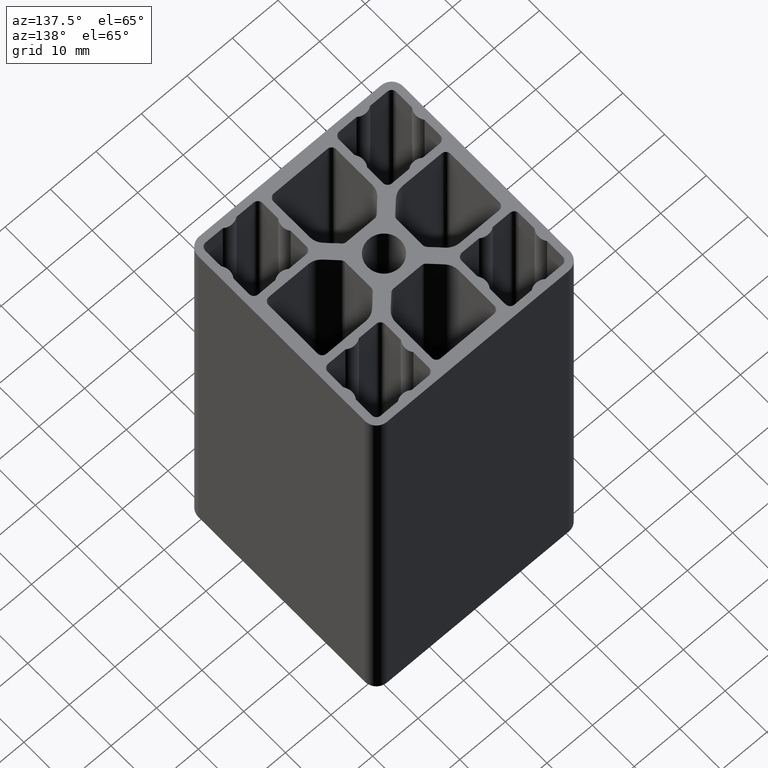
[diagram: clean part render]
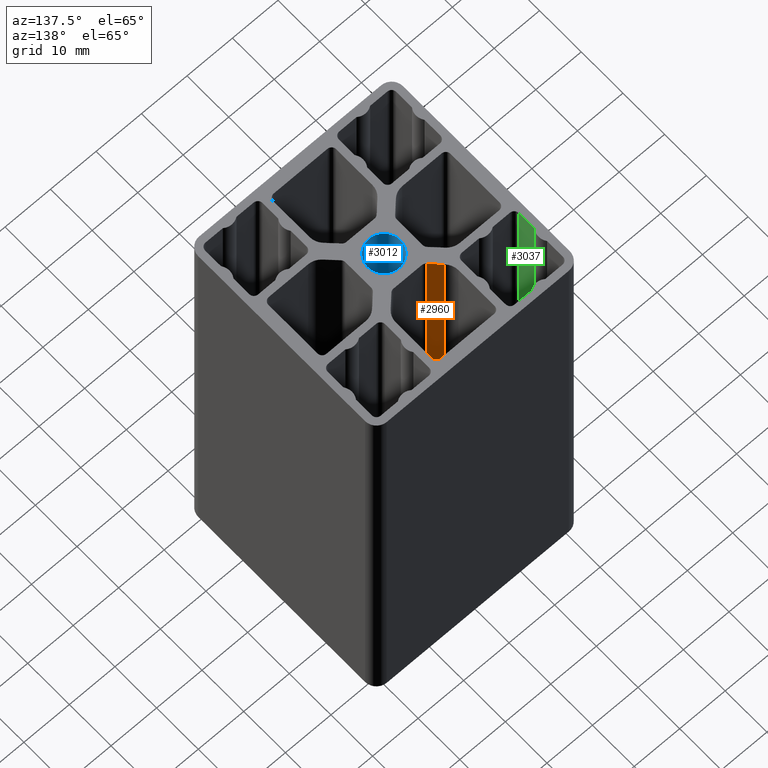
[diagram: same view with three faces highlighted in distinct colors, each labeled with its STEP entity id]
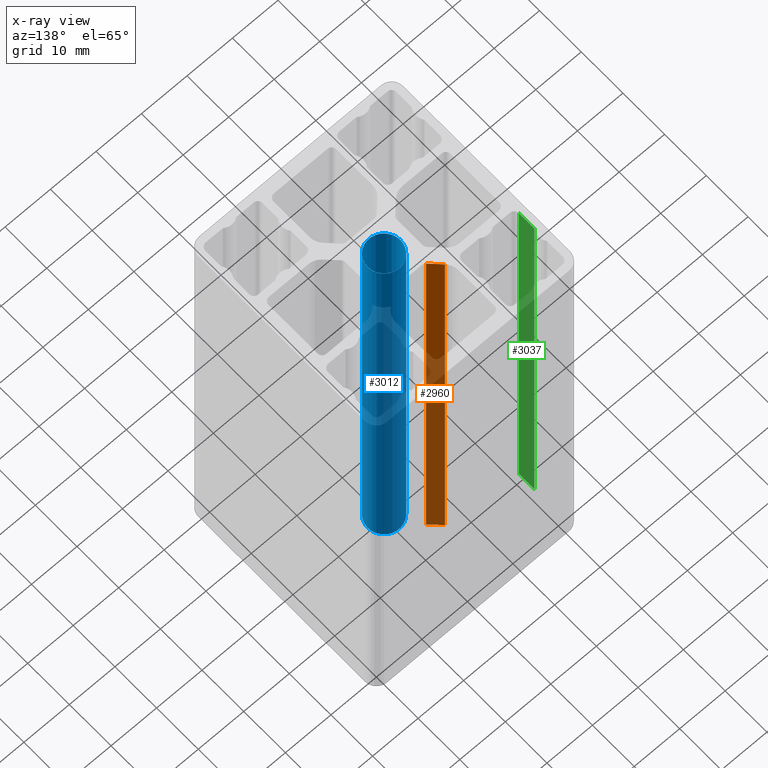
[diagram: x-ray of the same camera — body ghosted, the three highlighted faces saturated]
A machine part, auxiliary view with three faces highlighted in distinct colors.
The next image is the same camera in x-ray (body ghosted, the three faces saturated) — at least one of them is partly hidden behind the body in this view.
Their STEP definitions:

[orange] entity #2960 — the highlighted planar face has unit normal (-0.7071, -0.7071, 0).
#345=FACE_OUTER_BOUND('',#500,.T.);
#500=EDGE_LOOP('',(#2078,#2079,#2080,#2081));
#706=LINE('',#4576,#978);
#707=LINE('',#4580,#979);
#708=LINE('',#4582,#980);
#709=LINE('',#4583,#981);
#978=VECTOR('',#3618,100.);
#979=VECTOR('',#3623,3.0280699910046);
#980=VECTOR('',#3624,100.);
#981=VECTOR('',#3625,3.0280699910046);
#1250=VERTEX_POINT('',#4573);
#1251=VERTEX_POINT('',#4575);
#1252=VERTEX_POINT('',#4579);
#1253=VERTEX_POINT('',#4581);
#1587=EDGE_CURVE('',#1251,#1250,#706,.T.);
#1589=EDGE_CURVE('',#1252,#1250,#707,.T.);
#1590=EDGE_CURVE('',#1253,#1252,#708,.T.);
#1591=EDGE_CURVE('',#1251,#1253,#709,.T.);
#2078=ORIENTED_EDGE('',*,*,#1589,.F.);
#2079=ORIENTED_EDGE('',*,*,#1590,.F.);
#2080=ORIENTED_EDGE('',*,*,#1591,.F.);
#2081=ORIENTED_EDGE('',*,*,#1587,.T.);
#2882=PLANE('',#3149);
#2960=ADVANCED_FACE('',(#345),#2882,.F.);
#3149=AXIS2_PLACEMENT_3D('',#4578,#3621,#3622);
#3618=DIRECTION('',(0.,0.,1.));
#3621=DIRECTION('center_axis',(-0.707106781186372,-0.707106781186723,0.));
#3622=DIRECTION('ref_axis',(0.707106781186723,-0.707106781186372,0.));
#3623=DIRECTION('',(-0.707106781186723,0.707106781186372,0.));
#3624=DIRECTION('',(0.,0.,1.));
#3625=DIRECTION('',(0.707106781186723,-0.707106781186372,0.));
#4573=CARTESIAN_POINT('',(-5.9627416998053,8.08406204336147,100.));
#4575=CARTESIAN_POINT('',(-5.9627416998053,8.08406204336147,0.));
#4576=CARTESIAN_POINT('',(-5.9627416998053,8.08406204336147,0.));
#4578=CARTESIAN_POINT('Origin',(-5.9627416998053,8.08406204336147,0.));
#4579=CARTESIAN_POINT('',(-3.82157287525793,5.94289321881517,100.));
#4580=CARTESIAN_POINT('',(-2.45104076401287,4.57236110757079,100.));
#4581=CARTESIAN_POINT('',(-3.82157287525793,5.94289321881517,0.));
#4582=CARTESIAN_POINT('',(-3.82157287525793,5.94289321881517,0.));
#4583=CARTESIAN_POINT('',(-2.45104076401287,4.57236110757079,0.));

[blue] entity #3012 — the highlighted cylindrical surface (bore or boss wall) has radius 3.6 mm, axis along (0, 0, 1).
#15=FACE_BOUND('',#553,.T.);
#134=CIRCLE('',#3270,3.6);
#135=CIRCLE('',#3271,3.6);
#270=CYLINDRICAL_SURFACE('',#3269,3.6);
#397=FACE_OUTER_BOUND('',#552,.T.);
#552=EDGE_LOOP('',(#2286));
#553=EDGE_LOOP('',(#2287));
#1354=VERTEX_POINT('',#4888);
#1355=VERTEX_POINT('',#4890);
#1744=EDGE_CURVE('',#1354,#1354,#134,.T.);
#1745=EDGE_CURVE('',#1355,#1355,#135,.T.);
#2286=ORIENTED_EDGE('',*,*,#1744,.F.);
#2287=ORIENTED_EDGE('',*,*,#1745,.F.);
#3012=ADVANCED_FACE('',(#397,#15),#270,.F.);
#3269=AXIS2_PLACEMENT_3D('',#4887,#3948,#3949);
#3270=AXIS2_PLACEMENT_3D('',#4889,#3950,#3951);
#3271=AXIS2_PLACEMENT_3D('',#4891,#3952,#3953);
#3948=DIRECTION('center_axis',(0.,0.,1.));
#3949=DIRECTION('ref_axis',(-1.,0.,0.));
#3950=DIRECTION('center_axis',(0.,0.,-1.));
#3951=DIRECTION('ref_axis',(-1.,0.,0.));
#3952=DIRECTION('center_axis',(0.,0.,1.));
#3953=DIRECTION('ref_axis',(-1.,0.,0.));
#4887=CARTESIAN_POINT('Origin',(0.,0.,0.));
#4888=CARTESIAN_POINT('',(3.6,-4.40872847693047E-16,100.));
#4889=CARTESIAN_POINT('Origin',(0.,0.,100.));
#4890=CARTESIAN_POINT('',(3.6,4.40872847693047E-16,0.));
#4891=CARTESIAN_POINT('Origin',(0.,0.,0.));

[green] entity #3037 — the highlighted planar face has unit normal (-1, 0, 0).
#422=FACE_OUTER_BOUND('',#578,.T.);
#578=EDGE_LOOP('',(#2384,#2385,#2386,#2387));
#834=LINE('',#5039,#1106);
#835=LINE('',#5041,#1107);
#836=LINE('',#5043,#1108);
#837=LINE('',#5044,#1109);
#1106=VECTOR('',#4108,3.76702902834193);
#1107=VECTOR('',#4109,100.);
#1108=VECTOR('',#4110,3.76702902834193);
#1109=VECTOR('',#4111,100.);
#1404=VERTEX_POINT('',#5037);
#1405=VERTEX_POINT('',#5038);
#1406=VERTEX_POINT('',#5040);
#1407=VERTEX_POINT('',#5042);
#1818=EDGE_CURVE('',#1404,#1405,#834,.T.);
#1819=EDGE_CURVE('',#1406,#1404,#835,.T.);
#1820=EDGE_CURVE('',#1407,#1406,#836,.T.);
#1821=EDGE_CURVE('',#1407,#1405,#837,.T.);
#2384=ORIENTED_EDGE('',*,*,#1818,.F.);
#2385=ORIENTED_EDGE('',*,*,#1819,.F.);
#2386=ORIENTED_EDGE('',*,*,#1820,.F.);
#2387=ORIENTED_EDGE('',*,*,#1821,.T.);
#2908=PLANE('',#3328);
#3037=ADVANCED_FACE('',(#422),#2908,.F.);
#3328=AXIS2_PLACEMENT_3D('',#5036,#4106,#4107);
#4106=DIRECTION('center_axis',(-1.,1.0845737316813E-13,0.));
#4107=DIRECTION('ref_axis',(-1.08357767203415E-13,-1.,0.));
#4108=DIRECTION('',(1.0845737316813E-13,1.,0.));
#4109=DIRECTION('',(0.,0.,1.));
#4110=DIRECTION('',(-1.0845737316813E-13,-1.,0.));
#4111=DIRECTION('',(0.,0.,1.));
#5036=CARTESIAN_POINT('Origin',(-20.9999999999996,13.1670290283419,0.));
#5037=CARTESIAN_POINT('',(-21.,9.40000000000001,100.));
#5038=CARTESIAN_POINT('',(-20.9999999999996,13.1670290283419,100.));
#5039=CARTESIAN_POINT('',(-21.0000000000003,6.58351451417211,100.));
#5040=CARTESIAN_POINT('',(-21.,9.40000000000001,0.));
#5041=CARTESIAN_POINT('',(-21.,9.40000000000001,0.));
#5042=CARTESIAN_POINT('',(-20.9999999999996,13.1670290283419,0.));
#5043=CARTESIAN_POINT('',(-21.0000000000003,6.58351451417211,0.));
#5044=CARTESIAN_POINT('',(-20.9999999999996,13.1670290283419,0.));